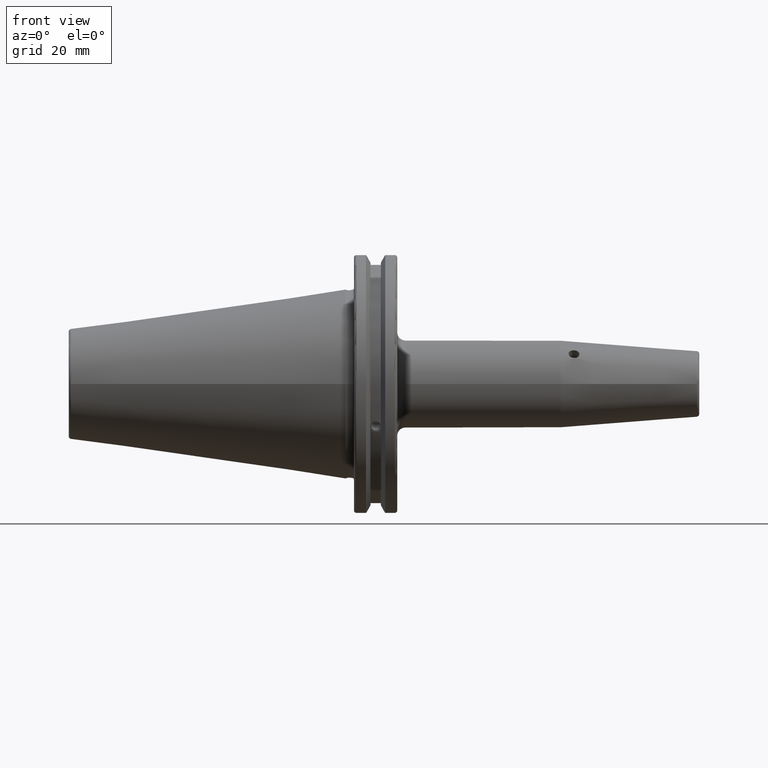
[diagram: clean part render]
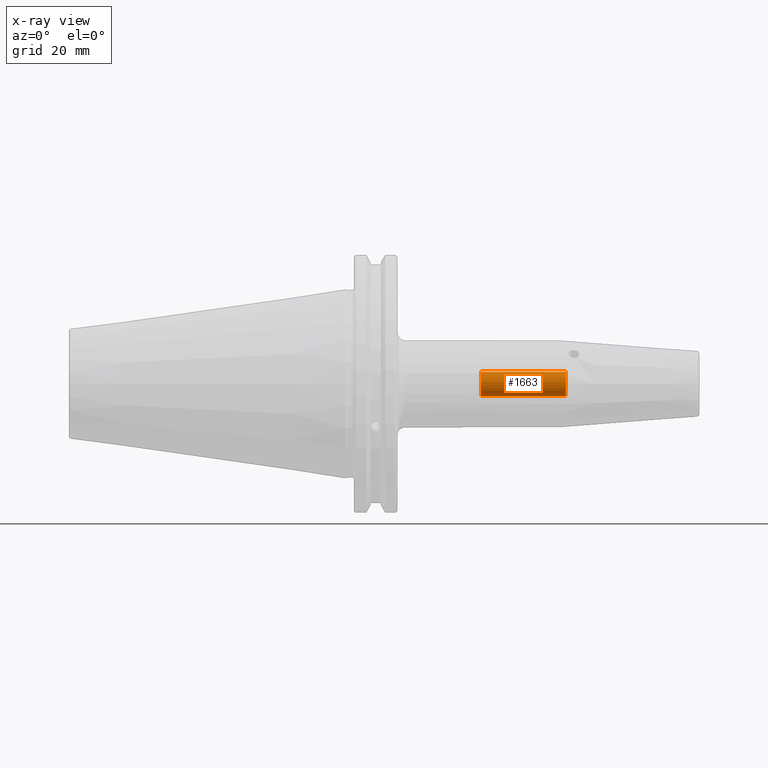
[diagram: x-ray — body ghosted, one internal face saturated and labeled with its STEP entity id]
A machine part, front view, then the same camera in x-ray: the body is ghosted and one INTERNAL B-rep face — a face not visible from any outside direction — is saturated and labeled: STEP entity #1663.
In plain terms, the highlighted cylindrical surface (bore or boss wall) has radius 4.4587 mm, axis along (1, 0, 0).
Its self-contained STEP definition (entity closure, byte-faithful):
#121=CIRCLE('',#1803,4.458734);
#122=CIRCLE('',#1804,4.458734);
#123=CIRCLE('',#1805,4.458734);
#214=FACE_OUTER_BOUND('',#314,.T.);
#314=EDGE_LOOP('',(#1200,#1201,#1202,#1203,#1204));
#488=LINE('',#2738,#590);
#590=VECTOR('',#2045,4.458734);
#718=VERTEX_POINT('',#2735);
#719=VERTEX_POINT('',#2737);
#720=VERTEX_POINT('',#2739);
#904=EDGE_CURVE('',#718,#718,#121,.T.);
#905=EDGE_CURVE('',#718,#719,#488,.T.);
#906=EDGE_CURVE('',#720,#719,#122,.T.);
#907=EDGE_CURVE('',#719,#720,#123,.T.);
#1200=ORIENTED_EDGE('',*,*,#904,.F.);
#1201=ORIENTED_EDGE('',*,*,#905,.T.);
#1202=ORIENTED_EDGE('',*,*,#906,.F.);
#1203=ORIENTED_EDGE('',*,*,#907,.F.);
#1204=ORIENTED_EDGE('',*,*,#905,.F.);
#1622=CYLINDRICAL_SURFACE('',#1802,4.458734);
#1663=ADVANCED_FACE('',(#214),#1622,.F.);
#1802=AXIS2_PLACEMENT_3D('',#2734,#2041,#2042);
#1803=AXIS2_PLACEMENT_3D('',#2736,#2043,#2044);
#1804=AXIS2_PLACEMENT_3D('',#2740,#2046,#2047);
#1805=AXIS2_PLACEMENT_3D('',#2741,#2048,#2049);
#2041=DIRECTION('center_axis',(1.,0.,0.));
#2042=DIRECTION('ref_axis',(0.,0.,-1.));
#2043=DIRECTION('center_axis',(-1.,0.,0.));
#2044=DIRECTION('ref_axis',(0.,0.,-1.));
#2045=DIRECTION('',(-1.,0.,0.));
#2046=DIRECTION('center_axis',(1.,0.,0.));
#2047=DIRECTION('ref_axis',(0.,0.,-1.));
#2048=DIRECTION('center_axis',(1.,0.,0.));
#2049=DIRECTION('ref_axis',(0.,0.,-1.));
#2734=CARTESIAN_POINT('Origin',(-187.873238750647,0.,0.));
#2735=CARTESIAN_POINT('',(81.,-5.46037432134947E-16,4.458734));
#2736=CARTESIAN_POINT('Origin',(81.,0.,0.));
#2737=CARTESIAN_POINT('',(49.7767315071168,-5.46037432134947E-16,4.458734));
#2738=CARTESIAN_POINT('',(-187.873238750647,-5.46037432134947E-16,4.458734));
#2739=CARTESIAN_POINT('',(49.7767315071168,-5.46037432134949E-16,-4.45873400000001));
#2740=CARTESIAN_POINT('Origin',(49.7767315071168,0.,0.));
#2741=CARTESIAN_POINT('Origin',(49.7767315071168,0.,0.));